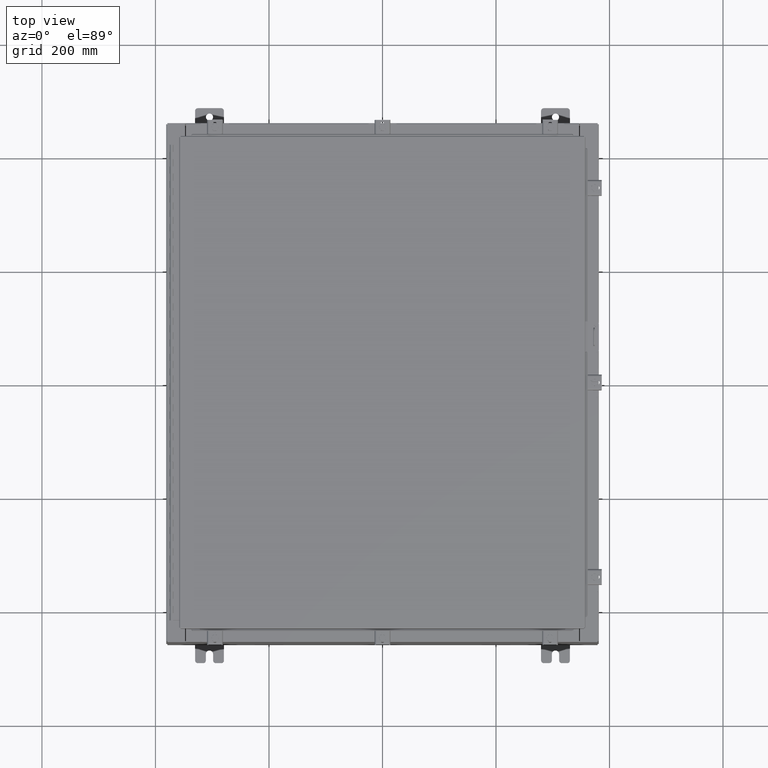
[diagram: clean part render]
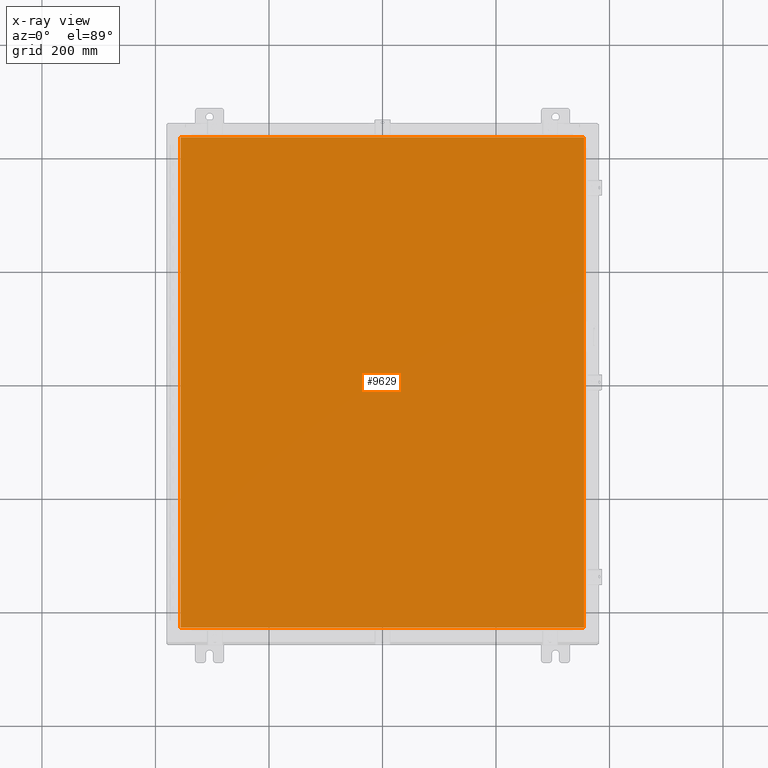
[diagram: x-ray — body ghosted, one internal face saturated and labeled with its STEP entity id]
A machine part, top view, then the same camera in x-ray: the body is ghosted and one INTERNAL B-rep face — a face not visible from any outside direction — is saturated and labeled: STEP entity #9629.
In plain terms, the highlighted planar face has unit normal (0, 0, -1).
Its self-contained STEP definition (entity closure, byte-faithful):
#281 = DIRECTION ( 'NONE',  ( 0.0000000000000000000, 1.000000000000000000, 0.0000000000000000000 ) ) ;
#1065 = LINE ( 'NONE', #20523, #34825 ) ;
#2908 = DIRECTION ( 'NONE',  ( -1.000000000000000000, -0.0000000000000000000, -0.0000000000000000000 ) ) ;
#3017 = ORIENTED_EDGE ( 'NONE', *, *, #13638, .F. ) ;
#3577 = ORIENTED_EDGE ( 'NONE', *, *, #40097, .F. ) ;
#4297 = VERTEX_POINT ( 'NONE', #28789 ) ;
#4346 = LINE ( 'NONE', #11963, #12273 ) ;
#5580 = CARTESIAN_POINT ( 'NONE',  ( 0.0000000000000000000, 0.0000000000000000000, -0.07470000000000015500 ) ) ;
#5740 = ORIENTED_EDGE ( 'NONE', *, *, #31843, .F. ) ;
#6622 = VERTEX_POINT ( 'NONE', #38864 ) ;
#8950 = DIRECTION ( 'NONE',  ( -1.000000000000000000, 0.0000000000000000000, -0.0000000000000000000 ) ) ;
#9629 = ADVANCED_FACE ( 'NONE', ( #33690 ), #25749, .T. ) ;
#9732 = EDGE_CURVE ( 'NONE', #29325, #4297, #13681, .T. ) ;
#11963 = CARTESIAN_POINT ( 'NONE',  ( -13.99030000000000700, -17.00630000000000000, -0.07470000000000015500 ) ) ;
#12273 = VECTOR ( 'NONE', #28997, 39.37007874015748100 ) ;
#13638 = EDGE_CURVE ( 'NONE', #4297, #27222, #23706, .T. ) ;
#13681 = LINE ( 'NONE', #26334, #30487 ) ;
#14831 = ORIENTED_EDGE ( 'NONE', *, *, #9732, .F. ) ;
#20328 = CARTESIAN_POINT ( 'NONE',  ( -13.99030000000000700, -17.00630000000000000, -0.07470000000000015500 ) ) ;
#20523 = CARTESIAN_POINT ( 'NONE',  ( 13.99029999999999200, -17.00630000000000000, -0.07470000000000015500 ) ) ;
#22860 = CARTESIAN_POINT ( 'NONE',  ( -13.99030000000000700, 17.00630000000000000, -0.07470000000000015500 ) ) ;
#23706 = LINE ( 'NONE', #22860, #39525 ) ;
#25602 = CARTESIAN_POINT ( 'NONE',  ( 13.99029999999999200, 17.00630000000000300, -0.07470000000000015500 ) ) ;
#25749 = PLANE ( 'NONE',  #28129 ) ;
#26334 = CARTESIAN_POINT ( 'NONE',  ( 13.99029999999999200, 17.00630000000000300, -0.07470000000000234800 ) ) ;
#27222 = VERTEX_POINT ( 'NONE', #20328 ) ;
#28129 = AXIS2_PLACEMENT_3D ( 'NONE', #5580, #29105, #8950 ) ;
#28789 = CARTESIAN_POINT ( 'NONE',  ( -13.99030000000000700, 17.00630000000000300, -0.07470000000000015500 ) ) ;
#28997 = DIRECTION ( 'NONE',  ( 1.000000000000000000, -0.0000000000000000000, -0.0000000000000000000 ) ) ;
#29105 = DIRECTION ( 'NONE',  ( 0.0000000000000000000, 0.0000000000000000000, -1.000000000000000000 ) ) ;
#29325 = VERTEX_POINT ( 'NONE', #25602 ) ;
#30487 = VECTOR ( 'NONE', #2908, 39.37007874015748100 ) ;
#31843 = EDGE_CURVE ( 'NONE', #6622, #29325, #1065, .T. ) ;
#33690 = FACE_OUTER_BOUND ( 'NONE', #37489, .T. ) ;
#34825 = VECTOR ( 'NONE', #281, 39.37007874015748100 ) ;
#37489 = EDGE_LOOP ( 'NONE', ( #5740, #3577, #3017, #14831 ) ) ;
#38864 = CARTESIAN_POINT ( 'NONE',  ( 13.99029999999999200, -17.00630000000000000, -0.07470000000000015500 ) ) ;
#39525 = VECTOR ( 'NONE', #43039, 39.37007874015748100 ) ;
#40097 = EDGE_CURVE ( 'NONE', #27222, #6622, #4346, .T. ) ;
#43039 = DIRECTION ( 'NONE',  ( 0.0000000000000000000, -1.000000000000000000, 0.0000000000000000000 ) ) ;